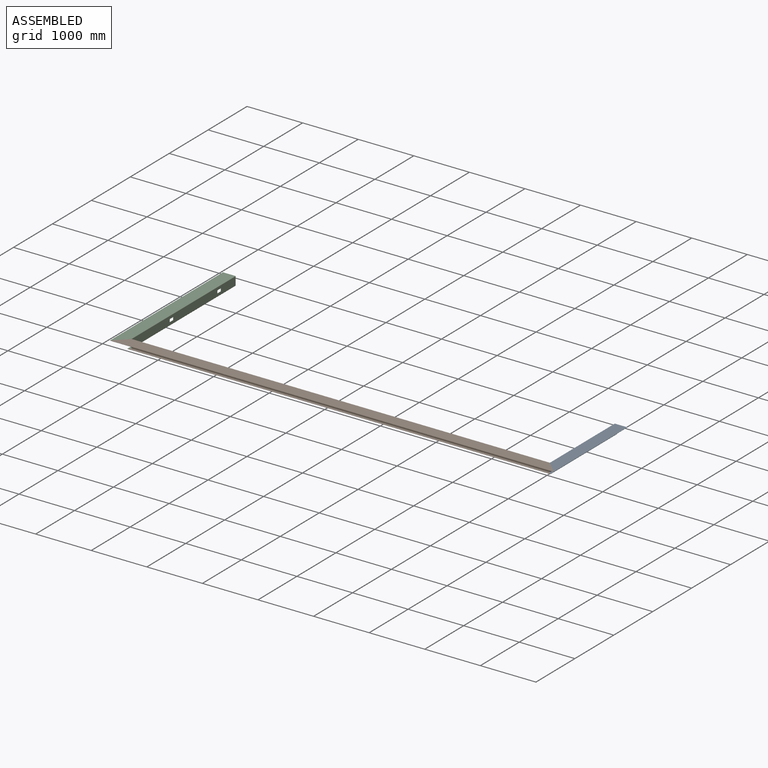
[diagram: assembled view]
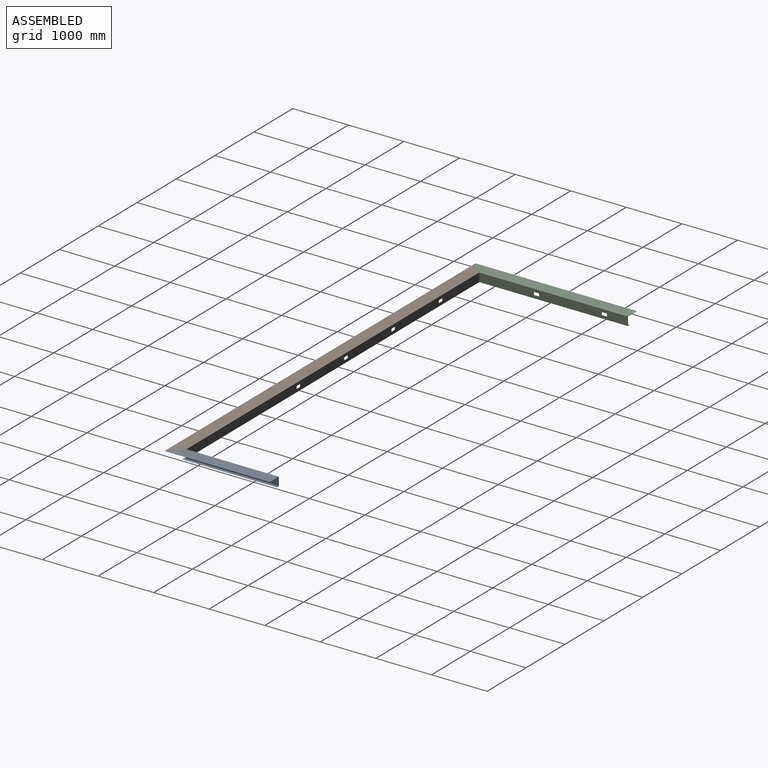
[diagram: assembled view, second angle]
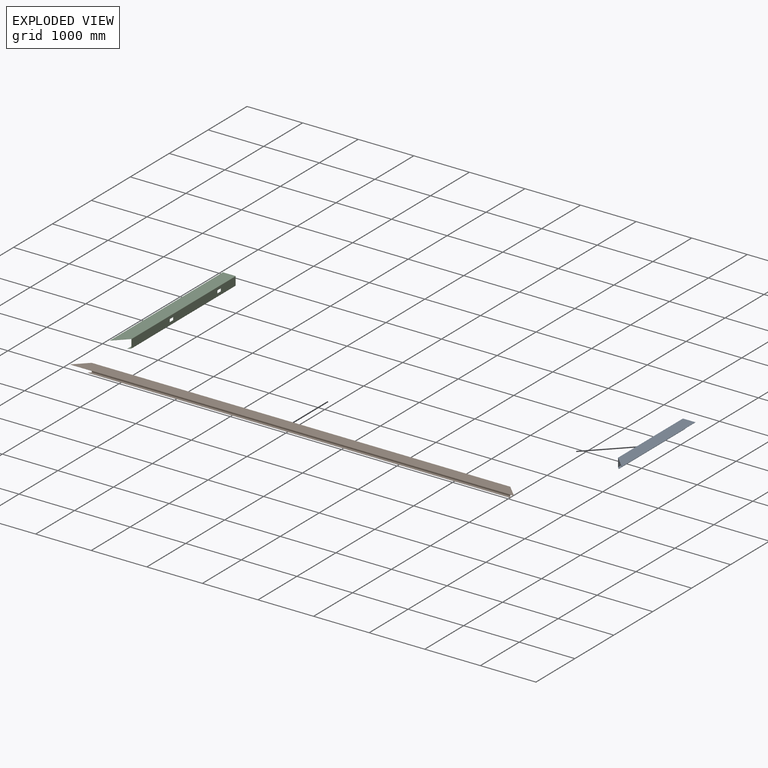
[diagram: exploded view]
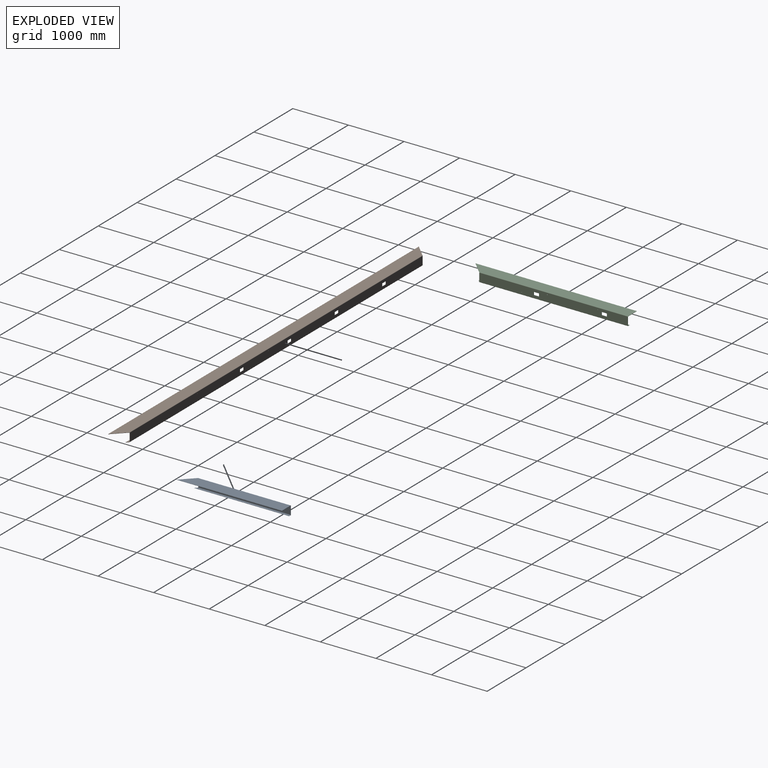
[diagram: exploded view, second angle]
ASSEMBLY  parts=3 mates=3
PART A: 35 faces, bbox 228.6x1892.3x158.8 mm
  f0: plane 149.86x3.18mm, normal (0,1,0), area 475.8mm2, adj f7,f8,f18,f31
  f1: cylinder r=3.17mm len=6.35mm, axis (1,0,0), area 63.3mm2, adj f7,f8
  f2: cylinder r=3.17mm len=6.35mm, axis (1,0,0), area 63.3mm2, adj f7,f8
  f3: cylinder r=3.17mm len=6.35mm, axis (1,0,0), area 63.3mm2, adj f7,f8
  f4: cylinder r=3.17mm len=6.35mm, axis (1,0,0), area 63.3mm2, adj f7,f8
  f5: cylinder r=3.17mm len=6.35mm, axis (1,0,0), area 63.3mm2, adj f7,f8
  f6: plane 149.86x3.18mm, normal (0,-1,0), area 475.8mm2, adj f7,f8,f19,f32
  f7: plane 1663.7x149.86mm, normal (-1,0,0), area 249163.7mm2, adj f0,f1,f2,f3,f4,f5,f6,f20
  f8: plane 1663.7x149.86mm, normal (1,0,0), area 249163.7mm2, adj f0,f1,f2,f3,f4,f5,f6,f21
  f9: plane 224.16x3.18mm, normal (0,1,0), area 711.7mm2, adj f12,f13,f14,f18
  f10: plane 3.18x1.07mm, normal (-1,0,0), area 3.4mm2, adj f11,f13,f14,f16
  f11: plane 224.16x224.16mm, normal (-0.71,-0.71,0), area 1006.5mm2, adj f10,f12,f13,f14
  f12: plane 1892.3x3.18mm, normal (1,0,0), area 6008.1mm2, adj f9,f11,f13,f14
  f13: plane 1892.3x224.16mm, normal (0,0,1), area 399037mm2, adj f9,f10,f11,f12,f15,f16,f17,f20
  f14: plane 1892.3x224.16mm, normal (0,0,-1), area 399037mm2, adj f9,f10,f11,f12,f15,f16,f17,f21
  f15: cylinder r=1.69mm len=3.37mm, axis (0,0,-1), area 16.8mm2, adj f13,f14,f16,f17
  f16: plane 3.18x1.27mm, normal (0,1,0), area 4mm2, adj f10,f13,f14,f15
  f17: plane 3.18x1.27mm, normal (0,-1,0), area 4mm2, adj f13,f14,f15,f19
  f18: plane 4.45x4.45mm, normal (0,1,0), area 14.3mm2, adj f0,f9,f20,f21
  f19: plane 4.45x4.45mm, normal (0,-1,0), area 14.3mm2, adj f6,f17,f20,f21
  f20: cylinder r=4.45mm len=1663.7mm, axis (0,1,0), area 11616.3mm2, adj f7,f13,f18,f19
  f21: cylinder r=1.27mm len=1663.7mm, axis (0,1,0), area 3318.9mm2, adj f8,f14,f18,f19
  f22: plane 3.18x1.07mm, normal (-1,0,0), area 3.4mm2, adj f23,f24,f27,f30
  f23: plane 1708.15x40.01mm, normal (0,0,-1), area 67525.6mm2, adj f22,f25,f26,f27,f28,f29,f30,f33
  f24: plane 1708.15x40.01mm, normal (0,0,1), area 67525.6mm2, adj f22,f25,f26,f27,f28,f29,f30,f34
  f25: plane 40.01x3.18mm, normal (0,1,0), area 127mm2, adj f23,f24,f26,f31
  f26: plane 1708.15x3.18mm, normal (1,0,0), area 5423.4mm2, adj f23,f24,f25,f27
  f27: plane 40.01x40.01mm, normal (-0.71,-0.71,0), area 179.6mm2, adj f22,f23,f24,f26
  f28: cylinder r=1.69mm len=3.37mm, axis (0,0,1), area 16.8mm2, adj f23,f24,f29,f30
  f29: plane 3.18x1.27mm, normal (0,-1,0), area 4mm2, adj f23,f24,f28,f32
  f30: plane 3.18x1.27mm, normal (0,1,0), area 4mm2, adj f22,f23,f24,f28
  f31: plane 4.45x4.45mm, normal (0,1,0), area 14.3mm2, adj f0,f25,f33,f34
  f32: plane 4.45x4.45mm, normal (0,-1,0), area 14.3mm2, adj f6,f29,f33,f34
  f33: cylinder r=4.45mm len=1663.7mm, axis (0,1,0), area 11616.3mm2, adj f7,f23,f31,f32
  f34: cylinder r=1.27mm len=1663.7mm, axis (0,1,0), area 3318.9mm2, adj f8,f24,f31,f32
PART B: 69 faces, bbox 7982x228.6x158.8 mm
  f0: plane 92.08x3.18mm, normal (0,0,1), area 292.3mm2, adj f1,f32,f33,f34
  f1: plane 50.8x3.18mm, normal (-1,0,0), area 161.3mm2, adj f0,f2,f33,f34
  f2: plane 92.08x3.18mm, normal (0,0,-1), area 292.3mm2, adj f1,f32,f33,f34
  f3: plane 50.8x3.18mm, normal (-1,0,0), area 161.3mm2, adj f4,f31,f33,f34
  f4: plane 92.08x3.18mm, normal (0,0,-1), area 292.3mm2, adj f3,f5,f33,f34
  f5: plane 50.8x3.18mm, normal (1,0,0), area 161.3mm2, adj f4,f31,f33,f34
  f6: plane 149.86x3.18mm, normal (-1,0,0), area 475.8mm2, adj f33,f34,f49,f66
  f7: plane 50.8x3.18mm, normal (-1,0,0), area 161.3mm2, adj f8,f29,f33,f34
  f8: plane 92.08x3.18mm, normal (0,0,-1), area 292.3mm2, adj f7,f9,f33,f34
  f9: plane 50.8x3.18mm, normal (1,0,0), area 161.3mm2, adj f8,f29,f33,f34
  f10: plane 50.8x3.18mm, normal (-1,0,0), area 161.3mm2, adj f11,f28,f33,f34
  f11: plane 92.08x3.18mm, normal (0,0,-1), area 292.3mm2, adj f10,f12,f33,f34
  f12: plane 50.8x3.18mm, normal (1,0,0), area 161.3mm2, adj f11,f28,f33,f34
  f13: cylinder r=3.17mm len=6.35mm, axis (0,-1,0), area 63.3mm2, adj f33,f34
  f14: cylinder r=3.17mm len=6.35mm, axis (0,-1,0), area 63.3mm2, adj f33,f34
  f15: cylinder r=3.17mm len=6.35mm, axis (0,-1,0), area 63.3mm2, adj f33,f34
  f16: cylinder r=3.17mm len=6.35mm, axis (0,-1,0), area 63.3mm2, adj f33,f34
  f17: cylinder r=3.17mm len=6.35mm, axis (0,-1,0), area 63.3mm2, adj f33,f34
  f18: cylinder r=3.17mm len=6.35mm, axis (0,-1,0), area 63.3mm2, adj f33,f34
  f19: cylinder r=3.17mm len=6.35mm, axis (0,-1,0), area 63.3mm2, adj f33,f34
  f20: cylinder r=3.17mm len=6.35mm, axis (0,-1,0), area 63.3mm2, adj f33,f34
  f21: cylinder r=3.17mm len=6.35mm, axis (0,-1,0), area 63.3mm2, adj f33,f34
  f22: cylinder r=3.17mm len=6.35mm, axis (0,-1,0), area 63.3mm2, adj f33,f34
  f23: cylinder r=3.17mm len=6.35mm, axis (0,-1,0), area 63.3mm2, adj f33,f34
  f24: cylinder r=3.17mm len=6.35mm, axis (0,-1,0), area 63.3mm2, adj f33,f34
  f25: cylinder r=3.17mm len=6.35mm, axis (0,-1,0), area 63.3mm2, adj f33,f34
  f26: cylinder r=3.17mm len=6.35mm, axis (0,-1,0), area 63.3mm2, adj f33,f34
  f27: cylinder r=3.17mm len=6.35mm, axis (0,-1,0), area 63.3mm2, adj f33,f34
  f28: plane 92.08x3.18mm, normal (0,0,1), area 292.3mm2, adj f10,f12,f33,f34
  f29: plane 92.08x3.18mm, normal (0,0,1), area 292.3mm2, adj f7,f9,f33,f34
  f30: plane 149.86x3.18mm, normal (1,0,0), area 475.8mm2, adj f33,f34,f48,f65
  f31: plane 92.08x3.18mm, normal (0,0,1), area 292.3mm2, adj f3,f5,f33,f34
  f32: plane 50.8x3.18mm, normal (1,0,0), area 161.3mm2, adj f0,f2,f33,f34
  f33: plane 7524.75x149.86mm, normal (0,1,0), area 1108474.4mm2, adj f0,f1,f2,f3,f4,f5,f6,f7
  f34: plane 7524.75x149.86mm, normal (0,-1,0), area 1108474.4mm2, adj f0,f1,f2,f3,f4,f5,f6,f7
  f35: plane 3.18x1.07mm, normal (0,1,0), area 3.4mm2, adj f36,f37,f38,f47
  f36: plane 7981.95x224.16mm, normal (0,0,1), area 1738931mm2, adj f35,f38,f39,f40,f41,f42,f43,f44
  f37: plane 7981.95x224.16mm, normal (0,0,-1), area 1738931mm2, adj f35,f38,f39,f40,f41,f42,f43,f44
  f38: plane 224.16x224.16mm, normal (0.71,0.71,0), area 1006.5mm2, adj f35,f36,f37,f41
  f39: plane 3.18x1.07mm, normal (0,1,0), area 3.4mm2, adj f36,f37,f40,f43
  f40: plane 224.16x224.16mm, normal (-0.71,0.71,0), area 1006.5mm2, adj f36,f37,f39,f41
  f41: plane 7981.95x3.18mm, normal (0,-1,0), area 25342.7mm2, adj f36,f37,f38,f40
  f42: cylinder r=1.69mm len=3.37mm, axis (0,0,-1), area 16.8mm2, adj f36,f37,f43,f44
  f43: plane 3.18x1.27mm, normal (1,0,0), area 4mm2, adj f36,f37,f39,f42
  f44: plane 3.18x1.27mm, normal (-1,0,0), area 4mm2, adj f36,f37,f42,f49
  f45: cylinder r=1.69mm len=3.37mm, axis (0,0,-1), area 16.8mm2, adj f36,f37,f46,f47
  f46: plane 3.18x1.27mm, normal (1,0,0), area 4mm2, adj f36,f37,f45,f48
  f47: plane 3.18x1.27mm, normal (-1,0,0), area 4mm2, adj f35,f36,f37,f45
  f48: plane 4.45x4.45mm, normal (1,0,0), area 14.3mm2, adj f30,f46,f50,f51
  f49: plane 4.45x4.45mm, normal (-1,0,0), area 14.3mm2, adj f6,f44,f50,f51
  f50: cylinder r=4.45mm len=7524.75mm, axis (1,0,0), area 52539.2mm2, adj f33,f36,f48,f49
  f51: cylinder r=1.27mm len=7524.75mm, axis (1,0,0), area 15011.2mm2, adj f34,f37,f48,f49
  f52: plane 3.18x1.07mm, normal (0,1,0), area 3.4mm2, adj f53,f54,f58,f64
  f53: plane 7613.65x40.01mm, normal (0,0,-1), area 302966.2mm2, adj f52,f55,f56,f57,f58,f59,f60,f61
  f54: plane 7613.65x40.01mm, normal (0,0,1), area 302966.2mm2, adj f52,f55,f56,f57,f58,f59,f60,f61
  f55: plane 3.18x1.07mm, normal (0,1,0), area 3.4mm2, adj f53,f54,f56,f60
  f56: plane 40.01x40.01mm, normal (0.71,0.71,0), area 179.6mm2, adj f53,f54,f55,f57
  f57: plane 7613.65x3.18mm, normal (0,-1,0), area 24173.3mm2, adj f53,f54,f56,f58
  f58: plane 40.01x40.01mm, normal (-0.71,0.71,0), area 179.6mm2, adj f52,f53,f54,f57
  f59: cylinder r=1.69mm len=3.37mm, axis (0,0,1), area 16.8mm2, adj f53,f54,f60,f61
  f60: plane 3.18x1.27mm, normal (-1,0,0), area 4mm2, adj f53,f54,f55,f59
  f61: plane 3.18x1.27mm, normal (1,0,0), area 4mm2, adj f53,f54,f59,f65
  f62: cylinder r=1.69mm len=3.37mm, axis (0,0,1), area 16.8mm2, adj f53,f54,f63,f64
  f63: plane 3.18x1.27mm, normal (-1,0,0), area 4mm2, adj f53,f54,f62,f66
  f64: plane 3.18x1.27mm, normal (1,0,0), area 4mm2, adj f52,f53,f54,f62
  f65: plane 4.45x4.45mm, normal (1,0,0), area 14.3mm2, adj f30,f61,f67,f68
  f66: plane 4.45x4.45mm, normal (-1,0,0), area 14.3mm2, adj f6,f63,f67,f68
  f67: cylinder r=4.45mm len=7524.75mm, axis (1,0,0), area 52539.2mm2, adj f33,f53,f65,f66
  f68: cylinder r=1.27mm len=7524.75mm, axis (1,0,0), area 15011.2mm2, adj f34,f54,f65,f66
PART C: 36 faces, bbox 228.6x2902x158.8 mm
  f0: plane 92.08x3.18mm, normal (0,0,1), area 292.3mm2, adj f1,f15,f16,f17
  f1: plane 50.8x3.18mm, normal (0,-1,0), area 161.3mm2, adj f0,f2,f16,f17
  f2: plane 92.08x3.18mm, normal (0,0,-1), area 292.3mm2, adj f1,f15,f16,f17
  f3: plane 149.86x3.18mm, normal (0,1,0), area 475.8mm2, adj f16,f17,f24,f32
  f4: plane 92.08x3.18mm, normal (0,0,1), area 292.3mm2, adj f5,f7,f16,f17
  f5: plane 50.8x3.18mm, normal (0,-1,0), area 161.3mm2, adj f4,f6,f16,f17
  f6: plane 92.08x3.18mm, normal (0,0,-1), area 292.3mm2, adj f5,f7,f16,f17
  f7: plane 50.8x3.18mm, normal (0,1,0), area 161.3mm2, adj f4,f6,f16,f17
  f8: cylinder r=3.17mm len=6.35mm, axis (1,0,0), area 63.3mm2, adj f16,f17
  f9: cylinder r=3.17mm len=6.35mm, axis (1,0,0), area 63.3mm2, adj f16,f17
  f10: cylinder r=3.17mm len=6.35mm, axis (1,0,0), area 63.3mm2, adj f16,f17
  f11: cylinder r=3.17mm len=6.35mm, axis (1,0,0), area 63.3mm2, adj f16,f17
  f12: cylinder r=3.17mm len=6.35mm, axis (1,0,0), area 63.3mm2, adj f16,f17
  f13: cylinder r=3.17mm len=6.35mm, axis (1,0,0), area 63.3mm2, adj f16,f17
  f14: plane 149.86x3.18mm, normal (0,-1,0), area 475.8mm2, adj f16,f17,f23,f33
  f15: plane 50.8x3.18mm, normal (0,1,0), area 161.3mm2, adj f0,f2,f16,f17
  f16: plane 2673.35x149.86mm, normal (-1,0,0), area 391083.4mm2, adj f0,f1,f2,f3,f4,f5,f6,f7
  f17: plane 2673.35x149.86mm, normal (1,0,0), area 391083.4mm2, adj f0,f1,f2,f3,f4,f5,f6,f7
  f18: plane 2901.95x3.18mm, normal (-1,0,0), area 9213.7mm2, adj f19,f20,f21,f22
  f19: plane 224.16x3.18mm, normal (0,1,0), area 711.7mm2, adj f18,f21,f22,f24
  f20: plane 224.16x224.16mm, normal (0.71,-0.71,0), area 1006.5mm2, adj f18,f21,f22,f23
  f21: plane 2901.95x224.16mm, normal (0,0,-1), area 625363.9mm2, adj f18,f19,f20,f26
  f22: plane 2901.95x224.16mm, normal (0,0,1), area 625363.9mm2, adj f18,f19,f20,f25
  f23: bspline ~4.45x4.45mm, area 20.9mm2, adj f14,f20,f25,f26
  f24: plane 4.45x4.45mm, normal (0,1,0), area 14.3mm2, adj f3,f19,f25,f26
  f25: cylinder r=4.45mm len=2677.8mm, axis (0,-1,0), area 18677.1mm2, adj f17,f22,f23,f24
  f26: cylinder r=1.27mm len=2677.8mm, axis (0,-1,0), area 5336.3mm2, adj f16,f21,f23,f24
  f27: plane 40.01x3.18mm, normal (0,1,0), area 127mm2, adj f28,f30,f31,f32
  f28: plane 2717.8x3.18mm, normal (-1,0,0), area 8629mm2, adj f27,f29,f30,f31
  f29: plane 40.01x40.01mm, normal (0.71,-0.71,0), area 179.6mm2, adj f28,f30,f31,f33
  f30: plane 2717.8x40.01mm, normal (0,0,1), area 107925.4mm2, adj f27,f28,f29,f35
  f31: plane 2717.8x40.01mm, normal (0,0,-1), area 107925.4mm2, adj f27,f28,f29,f34
  f32: plane 4.45x4.45mm, normal (0,1,0), area 14.3mm2, adj f3,f27,f34,f35
  f33: bspline ~4.45x4.45mm, area 21mm2, adj f14,f29,f34,f35
  f34: cylinder r=4.45mm len=2677.8mm, axis (0,1,0), area 18677.1mm2, adj f17,f31,f32,f33
  f35: cylinder r=1.27mm len=2677.8mm, axis (0,1,0), area 5336.3mm2, adj f16,f30,f32,f33
PLACE A t=(12132.11,947.21,-1866.5)mm
PLACE B t=(6430.45,-117.46,-1885.53)mm
PLACE C t=(4604.19,940.86,-1866.5)mm
MATE planar A.f11 <-> B.f38  axis (-0.71,-0.71,0) through (12248.63,-233.98,-1731.54)mm
MATE planar A.f13 <-> B.f36  axis (0,0,1) through (12360.71,-346.06,-1729.95)mm
MATE planar B.f40 <-> C.f20  axis (-0.71,0.71,0) through (4490.84,-233.98,-1731.54)mm
